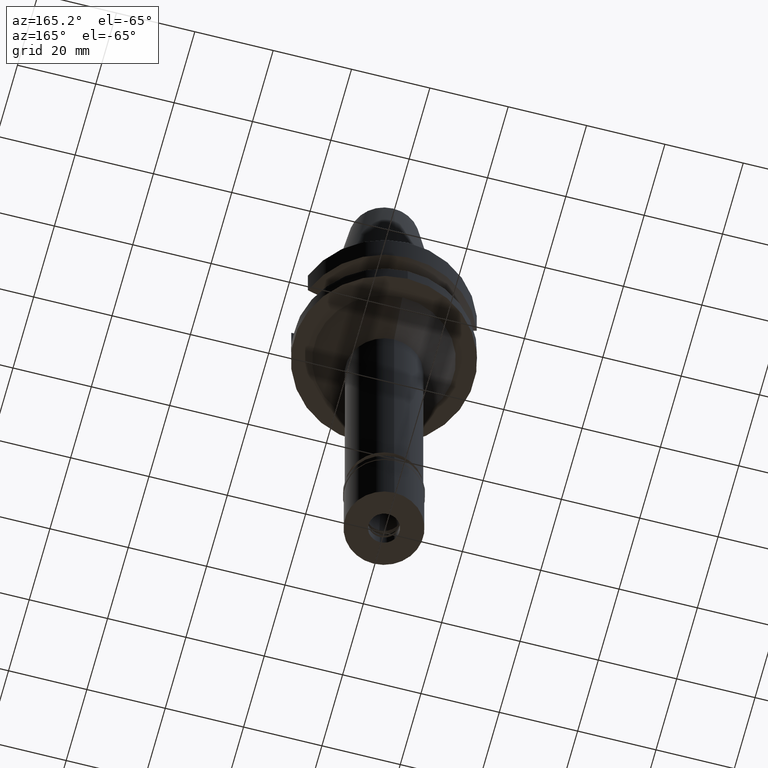
[diagram: clean part render]
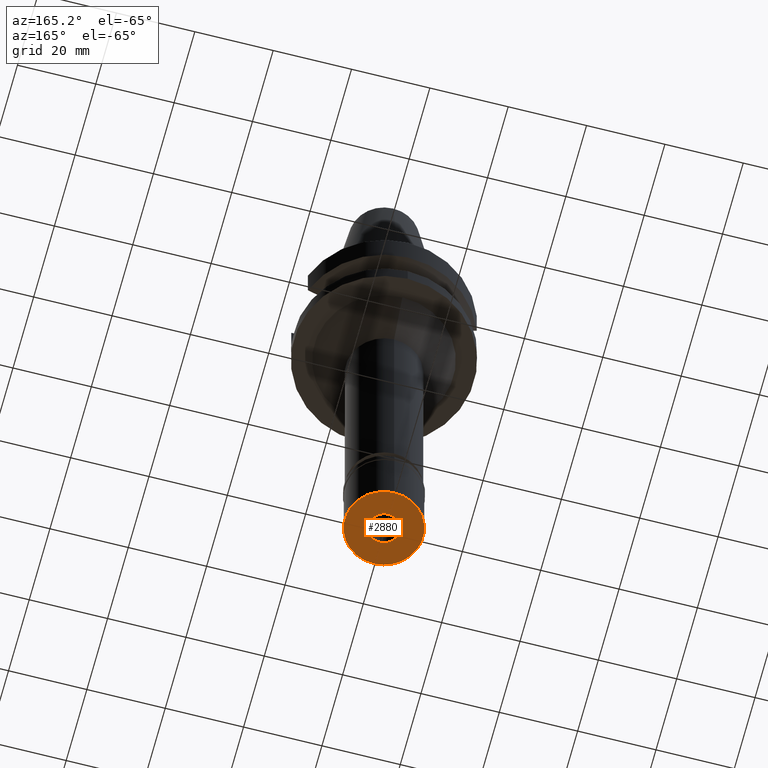
[diagram: same view with one face highlighted and labeled with its STEP entity id]
A machine part, auxiliary view. The second image highlights one B-rep face of the part: STEP entity #2880.
In plain terms, the highlighted planar face has unit normal (0, 0, -1).
Its self-contained STEP definition (entity closure, byte-faithful):
#2 = AXIS2_PLACEMENT_3D ( 'NONE', #580, #1061, #1274 ) ;
#20 = CIRCLE ( 'NONE', #620, 3.950000000000000178 ) ;
#56 = CIRCLE ( 'NONE', #2, 10.00000000000000000 ) ;
#79 = FACE_BOUND ( 'NONE', #1618, .T. ) ;
#290 = PLANE ( 'NONE',  #401 ) ;
#305 = CARTESIAN_POINT ( 'NONE',  ( 0.0000000000000000000, 10.00000000000000000, -20.60000000000000142 ) ) ;
#323 = DIRECTION ( 'NONE',  ( 0.0000000000000000000, -1.000000000000000000, 0.0000000000000000000 ) ) ;
#326 = VERTEX_POINT ( 'NONE', #2339 ) ;
#401 = AXIS2_PLACEMENT_3D ( 'NONE', #2943, #508, #323 ) ;
#444 = CARTESIAN_POINT ( 'NONE',  ( 0.0000000000000000000, 0.0000000000000000000, -20.60000000000000142 ) ) ;
#508 = DIRECTION ( 'NONE',  ( 0.0000000000000000000, 0.0000000000000000000, -1.000000000000000000 ) ) ;
#519 = ORIENTED_EDGE ( 'NONE', *, *, #2159, .F. ) ;
#564 = VERTEX_POINT ( 'NONE', #2602 ) ;
#580 = CARTESIAN_POINT ( 'NONE',  ( 0.0000000000000000000, 0.0000000000000000000, -20.60000000000000142 ) ) ;
#607 = CIRCLE ( 'NONE', #1956, 10.00000000000000000 ) ;
#620 = AXIS2_PLACEMENT_3D ( 'NONE', #1217, #2892, #1941 ) ;
#773 = EDGE_CURVE ( 'NONE', #564, #326, #1467, .T. ) ;
#845 = ORIENTED_EDGE ( 'NONE', *, *, #2524, .F. ) ;
#1019 = ORIENTED_EDGE ( 'NONE', *, *, #773, .F. ) ;
#1061 = DIRECTION ( 'NONE',  ( 0.0000000000000000000, 0.0000000000000000000, 1.000000000000000000 ) ) ;
#1078 = EDGE_LOOP ( 'NONE', ( #845, #519 ) ) ;
#1089 = VERTEX_POINT ( 'NONE', #305 ) ;
#1132 = EDGE_CURVE ( 'NONE', #326, #564, #20, .T. ) ;
#1157 = DIRECTION ( 'NONE',  ( 0.0000000000000000000, 1.000000000000000000, 0.0000000000000000000 ) ) ;
#1204 = FACE_OUTER_BOUND ( 'NONE', #1078, .T. ) ;
#1210 = AXIS2_PLACEMENT_3D ( 'NONE', #2790, #2516, #2290 ) ;
#1217 = CARTESIAN_POINT ( 'NONE',  ( 0.0000000000000000000, 0.0000000000000000000, -20.60000000000000142 ) ) ;
#1274 = DIRECTION ( 'NONE',  ( 0.0000000000000000000, -1.000000000000000000, 0.0000000000000000000 ) ) ;
#1467 = CIRCLE ( 'NONE', #1210, 3.950000000000000178 ) ;
#1509 = VERTEX_POINT ( 'NONE', #2762 ) ;
#1618 = EDGE_LOOP ( 'NONE', ( #1722, #1019 ) ) ;
#1722 = ORIENTED_EDGE ( 'NONE', *, *, #1132, .F. ) ;
#1853 = DIRECTION ( 'NONE',  ( 0.0000000000000000000, 0.0000000000000000000, 1.000000000000000000 ) ) ;
#1941 = DIRECTION ( 'NONE',  ( 0.0000000000000000000, 1.000000000000000000, 0.0000000000000000000 ) ) ;
#1956 = AXIS2_PLACEMENT_3D ( 'NONE', #444, #1853, #1157 ) ;
#2159 = EDGE_CURVE ( 'NONE', #1509, #1089, #56, .T. ) ;
#2290 = DIRECTION ( 'NONE',  ( 0.0000000000000000000, -1.000000000000000000, 0.0000000000000000000 ) ) ;
#2339 = CARTESIAN_POINT ( 'NONE',  ( 0.0000000000000000000, 3.950000000000000178, -20.60000000000000142 ) ) ;
#2516 = DIRECTION ( 'NONE',  ( 0.0000000000000000000, 0.0000000000000000000, -1.000000000000000000 ) ) ;
#2524 = EDGE_CURVE ( 'NONE', #1089, #1509, #607, .T. ) ;
#2602 = CARTESIAN_POINT ( 'NONE',  ( 0.0000000000000000000, -3.950000000000000178, -20.60000000000000142 ) ) ;
#2762 = CARTESIAN_POINT ( 'NONE',  ( 0.0000000000000000000, -10.00000000000000000, -20.60000000000000142 ) ) ;
#2790 = CARTESIAN_POINT ( 'NONE',  ( 0.0000000000000000000, 0.0000000000000000000, -20.60000000000000142 ) ) ;
#2880 = ADVANCED_FACE ( 'NONE', ( #1204, #79 ), #290, .T. ) ;
#2892 = DIRECTION ( 'NONE',  ( 0.0000000000000000000, 0.0000000000000000000, -1.000000000000000000 ) ) ;
#2943 = CARTESIAN_POINT ( 'NONE',  ( 0.0000000000000000000, 0.0000000000000000000, -20.60000000000000142 ) ) ;